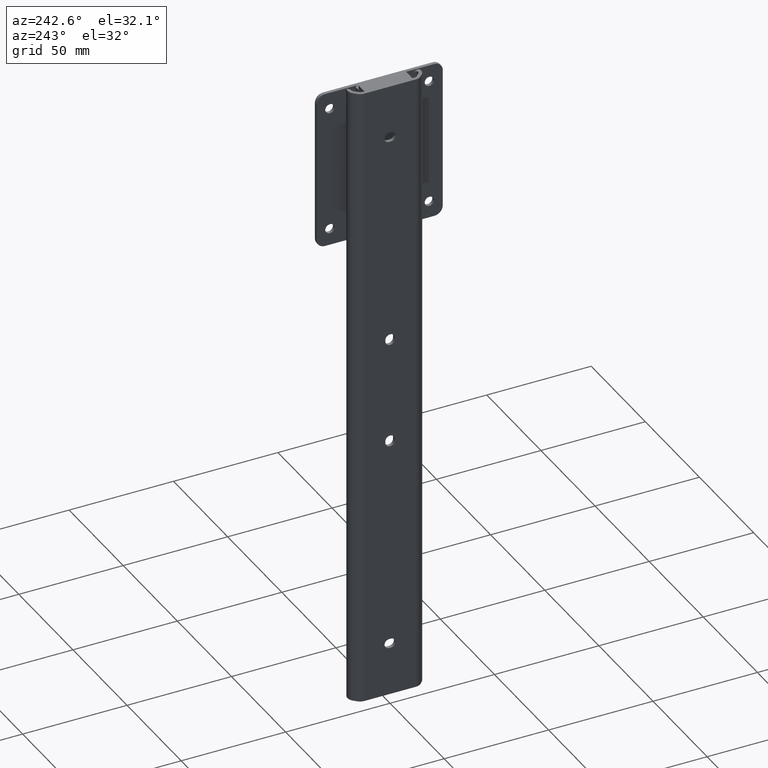
[diagram: clean part render]
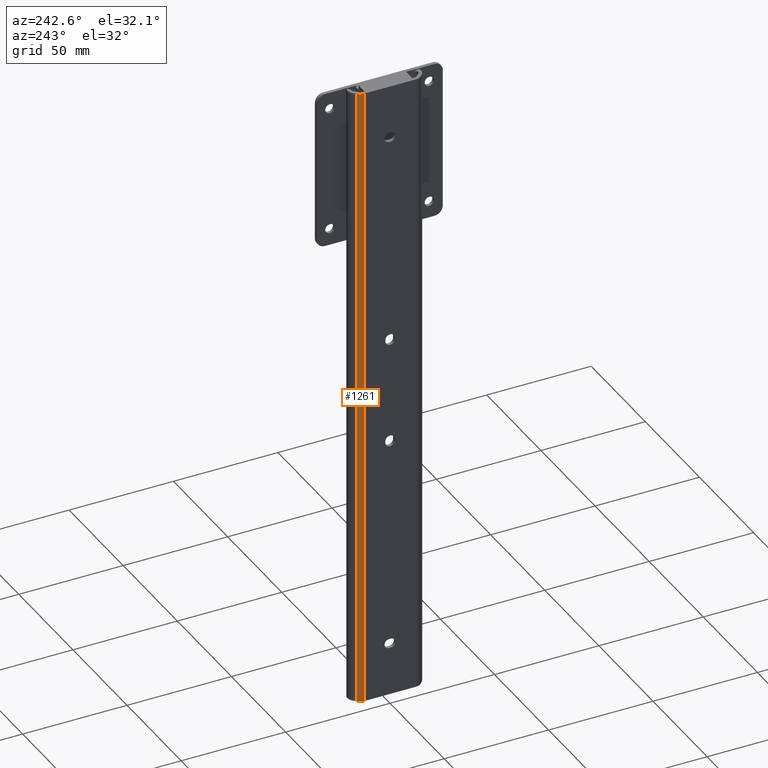
[diagram: same view with one face highlighted and labeled with its STEP entity id]
A machine part, auxiliary view. The second image highlights one B-rep face of the part: STEP entity #1261.
In plain terms, the highlighted cylindrical surface (edge-blend (fillet) strip) has radius 4 mm, axis along (0, 0, 1).
Its self-contained STEP definition (entity closure, byte-faithful):
#4 = LINE ( 'NONE', #2129, #338 ) ;
#31 = DIRECTION ( 'NONE',  ( 0.0000000000000000000, 0.0000000000000000000, 1.000000000000000000 ) ) ;
#72 = CARTESIAN_POINT ( 'NONE',  ( 4.000000000000100364, 12.34171572921633597, -304.8000000000000114 ) ) ;
#149 = DIRECTION ( 'NONE',  ( 0.0000000000000000000, 0.0000000000000000000, 1.000000000000000000 ) ) ;
#172 = DIRECTION ( 'NONE',  ( 1.000000000000000000, 0.0000000000000000000, 0.0000000000000000000 ) ) ;
#268 = VECTOR ( 'NONE', #1968, 1000.000000000000000 ) ;
#338 = VECTOR ( 'NONE', #2277, 1000.000000000000000 ) ;
#438 = CARTESIAN_POINT ( 'NONE',  ( 4.000000000000100364, 12.34171572921633597, -304.8000000000000114 ) ) ;
#476 = CYLINDRICAL_SURFACE ( 'NONE', #2268, 4.000000000000000000 ) ;
#509 = EDGE_CURVE ( 'NONE', #1220, #1313, #3453, .T. ) ;
#624 = CARTESIAN_POINT ( 'NONE',  ( 1.006139616066548115E-13, 12.34171572921639104, 0.0000000000000000000 ) ) ;
#740 = CARTESIAN_POINT ( 'NONE',  ( 1.171572875253840795, 15.17014285396247431, 0.0000000000000000000 ) ) ;
#816 = CARTESIAN_POINT ( 'NONE',  ( 1.171572875253840795, 15.17014285396247431, -304.8000000000000114 ) ) ;
#820 = DIRECTION ( 'NONE',  ( 0.0000000000000000000, 0.0000000000000000000, 1.000000000000000000 ) ) ;
#916 = ORIENTED_EDGE ( 'NONE', *, *, #2340, .F. ) ;
#1199 = AXIS2_PLACEMENT_3D ( 'NONE', #2237, #820, #3384 ) ;
#1213 = EDGE_CURVE ( 'NONE', #3449, #3094, #4, .T. ) ;
#1220 = VERTEX_POINT ( 'NONE', #2966 ) ;
#1261 = ADVANCED_FACE ( 'NONE', ( #2163 ), #476, .T. ) ;
#1313 = VERTEX_POINT ( 'NONE', #740 ) ;
#1367 = ORIENTED_EDGE ( 'NONE', *, *, #509, .F. ) ;
#1583 = EDGE_CURVE ( 'NONE', #1220, #3449, #2806, .T. ) ;
#1600 = EDGE_LOOP ( 'NONE', ( #916, #1367, #3494, #3023 ) ) ;
#1968 = DIRECTION ( 'NONE',  ( 0.0000000000000000000, 0.0000000000000000000, 1.000000000000000000 ) ) ;
#2096 = AXIS2_PLACEMENT_3D ( 'NONE', #72, #31, #3551 ) ;
#2129 = CARTESIAN_POINT ( 'NONE',  ( 1.006139616066548115E-13, 12.34171572921639104, -304.8000000000000114 ) ) ;
#2163 = FACE_OUTER_BOUND ( 'NONE', #1600, .T. ) ;
#2237 = CARTESIAN_POINT ( 'NONE',  ( 4.000000000000100364, 12.34171572921633597, 0.0000000000000000000 ) ) ;
#2268 = AXIS2_PLACEMENT_3D ( 'NONE', #438, #149, #172 ) ;
#2277 = DIRECTION ( 'NONE',  ( 0.0000000000000000000, 0.0000000000000000000, 1.000000000000000000 ) ) ;
#2340 = EDGE_CURVE ( 'NONE', #1313, #3094, #2395, .T. ) ;
#2395 = CIRCLE ( 'NONE', #1199, 4.000000000000000000 ) ;
#2631 = CARTESIAN_POINT ( 'NONE',  ( 1.006139616066548115E-13, 12.34171572921639104, -304.8000000000000114 ) ) ;
#2806 = CIRCLE ( 'NONE', #2096, 4.000000000000000000 ) ;
#2966 = CARTESIAN_POINT ( 'NONE',  ( 1.171572875253840795, 15.17014285396247431, -304.8000000000000114 ) ) ;
#3023 = ORIENTED_EDGE ( 'NONE', *, *, #1213, .T. ) ;
#3094 = VERTEX_POINT ( 'NONE', #624 ) ;
#3384 = DIRECTION ( 'NONE',  ( 1.000000000000000000, 0.0000000000000000000, 0.0000000000000000000 ) ) ;
#3449 = VERTEX_POINT ( 'NONE', #2631 ) ;
#3453 = LINE ( 'NONE', #816, #268 ) ;
#3494 = ORIENTED_EDGE ( 'NONE', *, *, #1583, .T. ) ;
#3551 = DIRECTION ( 'NONE',  ( 1.000000000000000000, 0.0000000000000000000, 0.0000000000000000000 ) ) ;